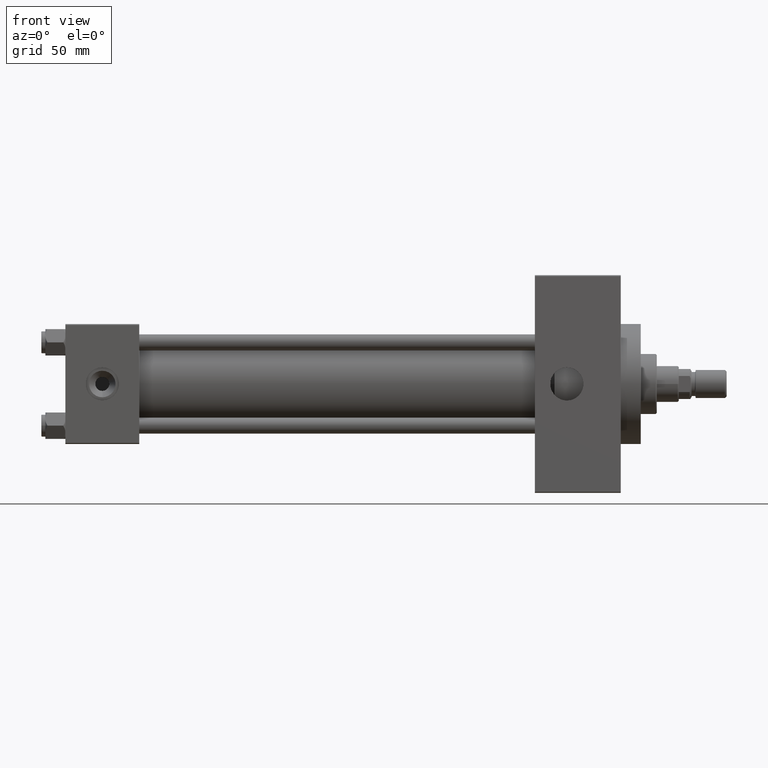
[diagram: clean part render]
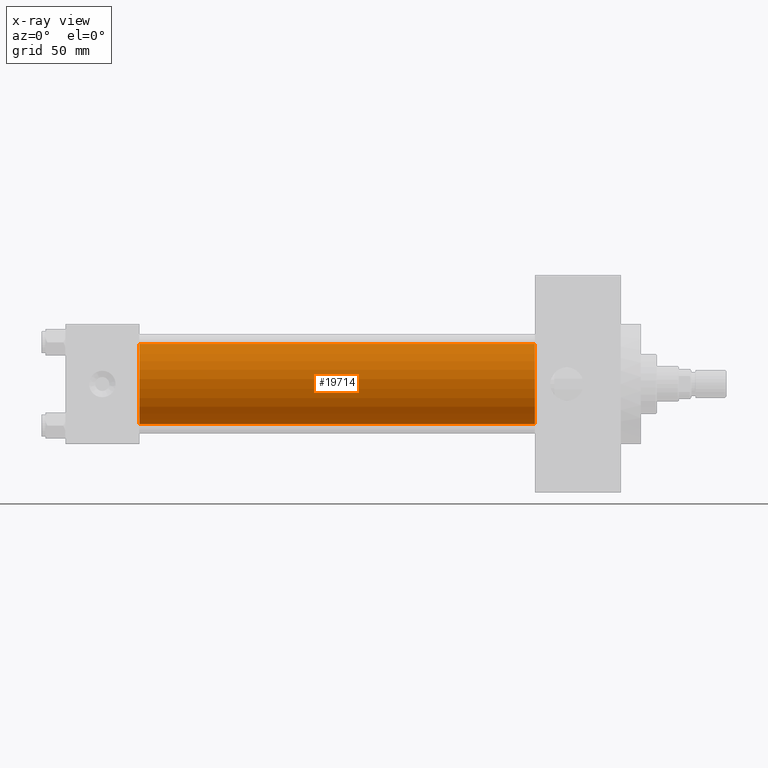
[diagram: x-ray — body ghosted, one internal face saturated and labeled with its STEP entity id]
A machine part, front view, then the same camera in x-ray: the body is ghosted and one INTERNAL B-rep face — a face not visible from any outside direction — is saturated and labeled: STEP entity #19714.
In plain terms, the highlighted cylindrical surface (partial cylindrical patch) has radius 20 mm, axis along (-1, -0, -0).
Its self-contained STEP definition (entity closure, byte-faithful):
#2598 = CARTESIAN_POINT ( 'NONE',  ( 37.00000000000000000, -2.602085213965210642E-15, 0.000000000000000000 ) ) ;
#4435 = DIRECTION ( 'NONE',  ( -1.000000000000000000, -0.000000000000000000, -0.000000000000000000 ) ) ;
#4765 = DIRECTION ( 'NONE',  ( 1.000000000000000000, 0.000000000000000000, 0.000000000000000000 ) ) ;
#5855 = EDGE_LOOP ( 'NONE', ( #19315, #11955, #6641, #40735 ) ) ;
#6511 = VERTEX_POINT ( 'NONE', #22045 ) ;
#6641 = ORIENTED_EDGE ( 'NONE', *, *, #39229, .F. ) ;
#8422 = EDGE_CURVE ( 'NONE', #8912, #6511, #38904, .T. ) ;
#8723 = AXIS2_PLACEMENT_3D ( 'NONE', #2598, #16939, #33308 ) ;
#8912 = VERTEX_POINT ( 'NONE', #34306 ) ;
#10643 = VERTEX_POINT ( 'NONE', #16734 ) ;
#10658 = DIRECTION ( 'NONE',  ( 0.000000000000000000, 0.000000000000000000, 1.000000000000000000 ) ) ;
#11804 = DIRECTION ( 'NONE',  ( 0.000000000000000000, 0.000000000000000000, -1.000000000000000000 ) ) ;
#11826 = EDGE_CURVE ( 'NONE', #10643, #8912, #40671, .T. ) ;
#11955 = ORIENTED_EDGE ( 'NONE', *, *, #8422, .T. ) ;
#16227 = CARTESIAN_POINT ( 'NONE',  ( 235.0000000000000284, -1.527916156705042519E-16, -20.00000000000000000 ) ) ;
#16734 = CARTESIAN_POINT ( 'NONE',  ( 235.0000000000000284, -2.602085213965210642E-15, 20.00000000000000000 ) ) ;
#16939 = DIRECTION ( 'NONE',  ( 1.000000000000000000, 0.000000000000000000, 0.000000000000000000 ) ) ;
#17520 = CIRCLE ( 'NONE', #8723, 20.00000000000000000 ) ;
#19315 = ORIENTED_EDGE ( 'NONE', *, *, #11826, .T. ) ;
#19498 = AXIS2_PLACEMENT_3D ( 'NONE', #29034, #29783, #10658 ) ;
#19714 = ADVANCED_FACE ( 'NONE', ( #45402 ), #44656, .F. ) ;
#22045 = CARTESIAN_POINT ( 'NONE',  ( 37.00000000000000000, -1.527916156705042519E-16, -20.00000000000000000 ) ) ;
#29034 = CARTESIAN_POINT ( 'NONE',  ( 235.0000000000000284, -2.602085213965210642E-15, 0.000000000000000000 ) ) ;
#29783 = DIRECTION ( 'NONE',  ( -1.000000000000000000, -0.000000000000000000, -0.000000000000000000 ) ) ;
#29932 = VECTOR ( 'NONE', #4435, 1000.000000000000000 ) ;
#30067 = VECTOR ( 'NONE', #34084, 1000.000000000000000 ) ;
#31693 = CARTESIAN_POINT ( 'NONE',  ( 235.0000000000000284, -2.602085213965210642E-15, 0.000000000000000000 ) ) ;
#33308 = DIRECTION ( 'NONE',  ( 0.000000000000000000, 0.000000000000000000, -1.000000000000000000 ) ) ;
#34084 = DIRECTION ( 'NONE',  ( -1.000000000000000000, -0.000000000000000000, -0.000000000000000000 ) ) ;
#34306 = CARTESIAN_POINT ( 'NONE',  ( 235.0000000000000284, -1.527916156705042519E-16, -20.00000000000000000 ) ) ;
#35264 = LINE ( 'NONE', #45904, #30067 ) ;
#37432 = AXIS2_PLACEMENT_3D ( 'NONE', #31693, #4765, #11804 ) ;
#38904 = LINE ( 'NONE', #16227, #29932 ) ;
#39229 = EDGE_CURVE ( 'NONE', #45439, #6511, #17520, .T. ) ;
#40671 = CIRCLE ( 'NONE', #37432, 20.00000000000000000 ) ;
#40735 = ORIENTED_EDGE ( 'NONE', *, *, #46503, .F. ) ;
#44656 = CYLINDRICAL_SURFACE ( 'NONE', #19498, 20.00000000000000000 ) ;
#45402 = FACE_OUTER_BOUND ( 'NONE', #5855, .T. ) ;
#45439 = VERTEX_POINT ( 'NONE', #49356 ) ;
#45904 = CARTESIAN_POINT ( 'NONE',  ( 235.0000000000000284, -2.602085213965210642E-15, 20.00000000000000000 ) ) ;
#46503 = EDGE_CURVE ( 'NONE', #10643, #45439, #35264, .T. ) ;
#49356 = CARTESIAN_POINT ( 'NONE',  ( 37.00000000000000000, -2.602085213965210642E-15, 20.00000000000000000 ) ) ;